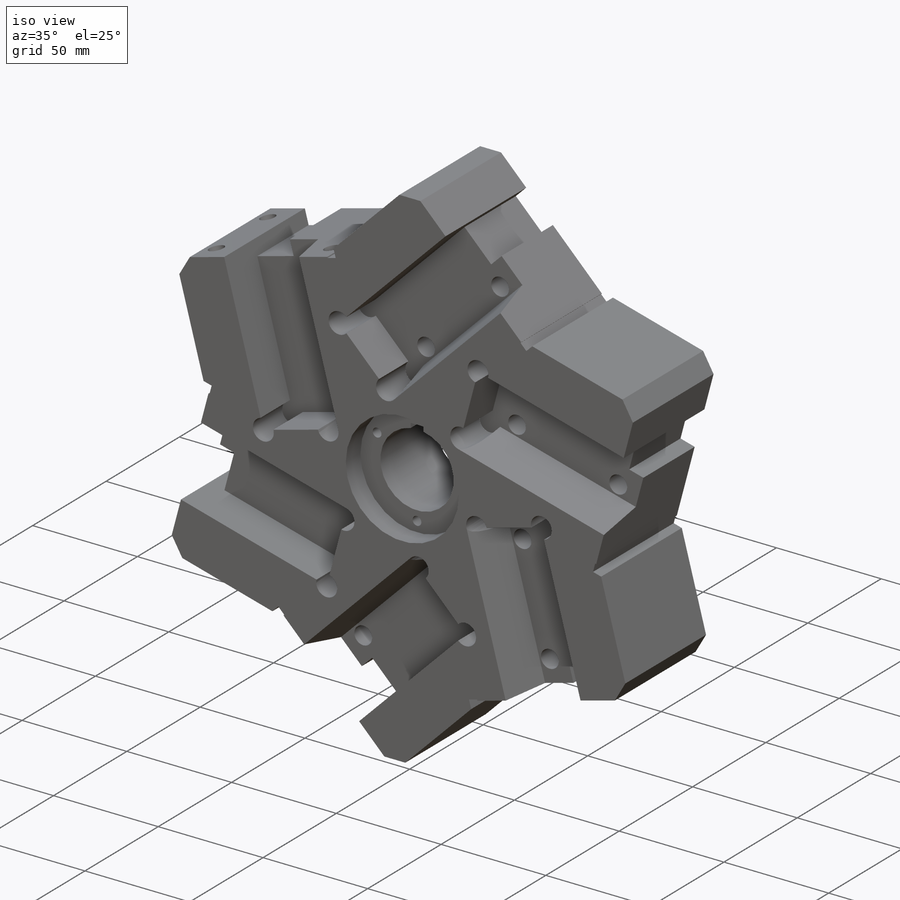
[diagram: iso view]
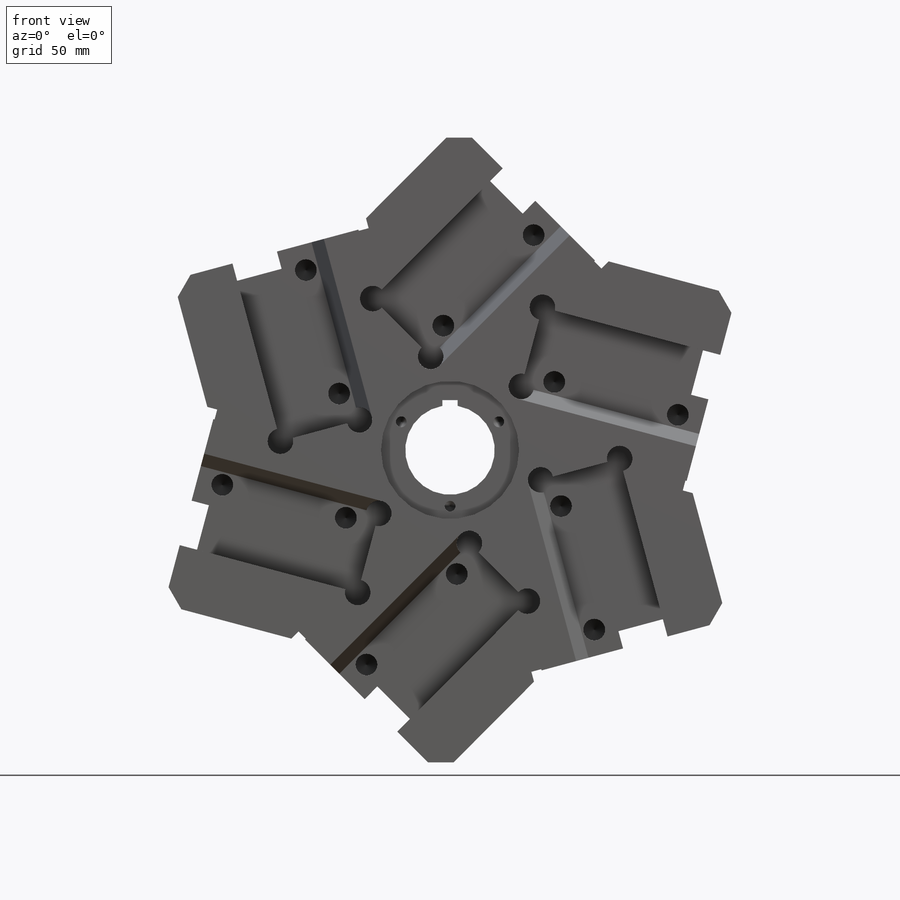
[diagram: front view]
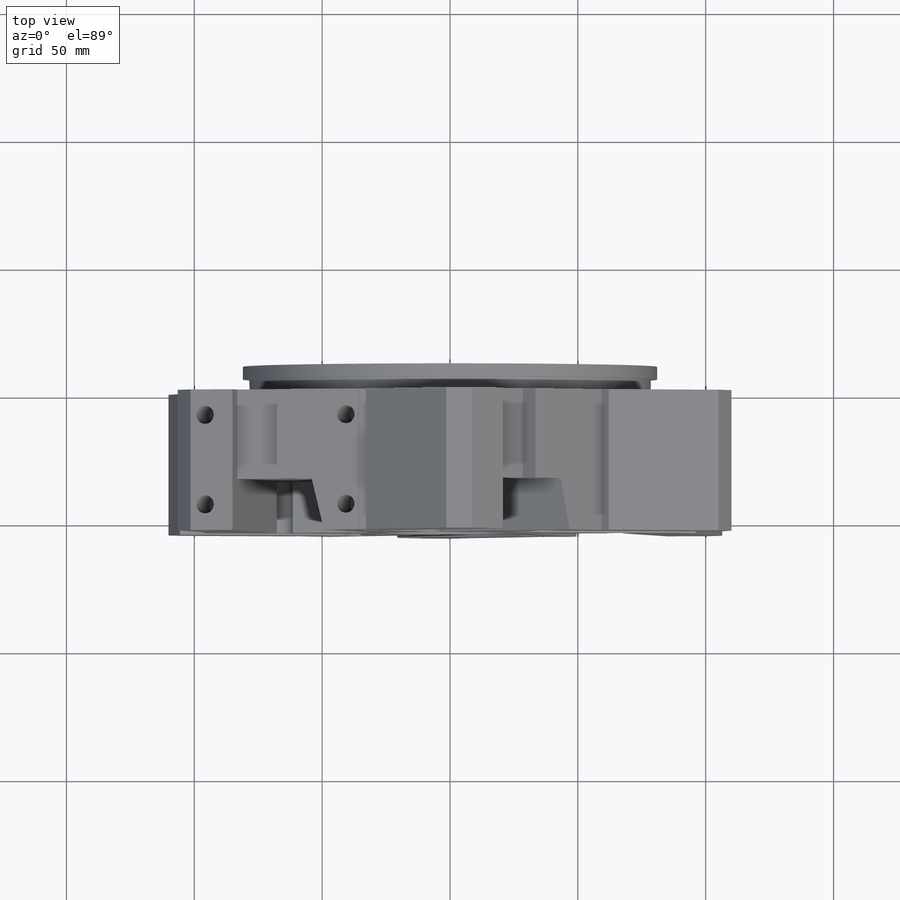
[diagram: top view]
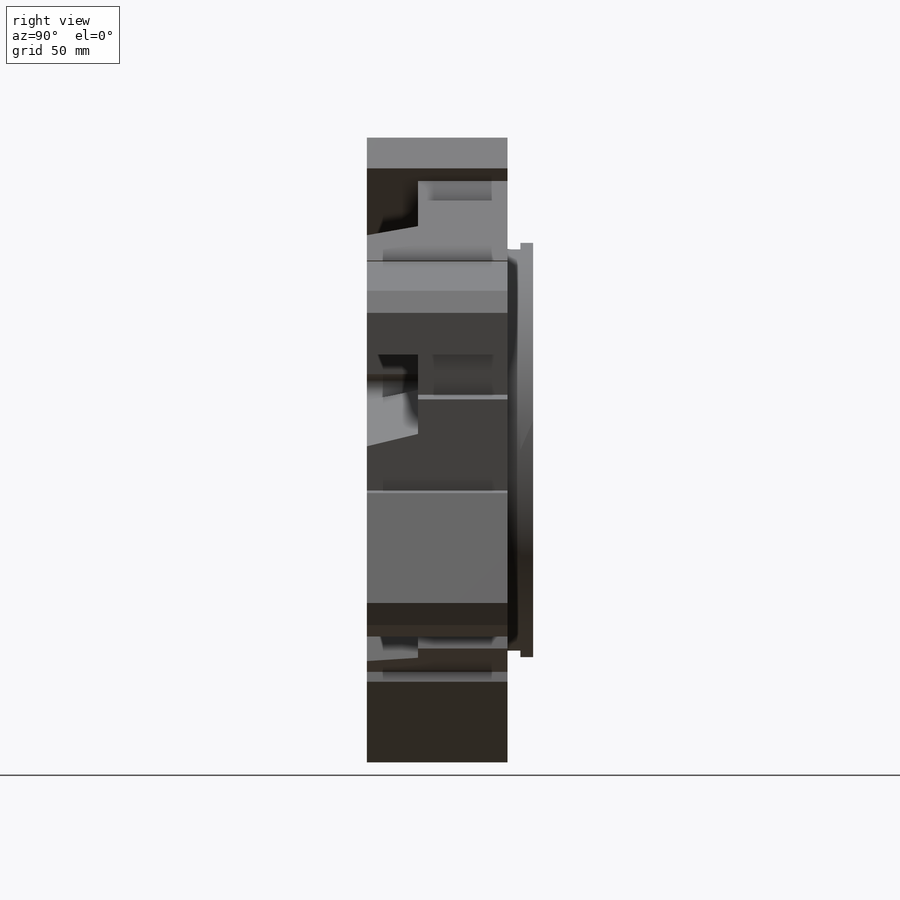
[diagram: right view]
SOLIDWORKS PART (.sldprt)
format: sldprt  version: not decoded by parser v0  size: 898,560 bytes
history: native  units: mm
features: sketch x23, cut_extrude x12, pattern_circular x5, hole x4, thread x4, extrude x3, material x1, pattern_linear x1, plane x1 (+11 scaffold rows collapsed)
feature tree (65):
  scaffold x11  (default folders/planes/origin — collapsed)
  material  "Material <not specified>"
  sketch  "Sketch1"  dims[D2=~216.61471mm D1=250.0mm]
  extrude  "Boss-Extrude1"  Depth=55mm
  sketch  "Sketch3"  dims[c1.D4=~177.014893mm c1.D1=5.0mm c1.D2=~30.923421mm c1.D3=~24.320141mm c2.D3=~76.28753deg c2.D4=~30.923421mm c2.D2=30.0mm c3.D3=35.0mm c3.D4=35.0mm c4.D4=~15.945396deg c5.D4=10.0mm c6.D4=90.0deg c6.D6=~89.689111mm c6.D7=10.0mm c7.D7=60.0deg c8.D7=10.0mm c8.D6=120.0mm c9.D7=~89.689111mm c9.D8=~17.390084mm c9.D1=10.0mm c9.D2=10.0mm c9.D5=~113.521332mm c9.D6=~122.124798mm c9.D3=6.0]
  cut_extrude  "Cut-Extrude1"  [1 undecoded]
  sketch  "Sketch6"  dims[c1.D1=72.0mm c1.D2=43.0mm c1.D3=~90.909839mm c2.D3=~52.968562deg c2.D1=72.0mm c3.D1=90.0deg c3.D5=~65.528247mm c4.D1=72.0mm c4.D2=46.0mm c4.D3=~55.143655mm c5.D3=~67.638957deg c5.D2=42.0mm c6.D3=4.0mm c6.D4=0.5mm c6.D5=68.0mm c6.D6=~67.109142mm c7.D6=~57.920876deg c7.D7=~49.701358mm c8.D7=~35.646978deg c9.D7=27.469mm c10.D7=~125.646978deg c10.D2=27.469mm c11.D2=135.0deg c11.D7=~44.526404mm c11.D9=~47.983203mm c12.D9=~90.119105deg c12.D2=~47.983203mm c13.D2=90.0deg c13.D9=27.469mm c14.D9=~135.070309deg c14.D8=6.0]
  cut_extrude  "Cut-Extrude6"  [1 undecoded]
  sketch  "Sketch7"  dims[c1.D4=10.0mm c1.D5=10.0mm c1.D7=5.0mm c2.D4=5.0mm c2.D5=5.0mm c2.D1=32.0mm c2.D2=17.0mm c2.D3=72.0mm c2.D6=32.0mm c2.D7=~17.361507mm c3.D6=6.0]
  cut_extrude  "Cut-Extrude7"  Depth=20mm
  sketch  "Sketch8"  dims[D1=35.0mm D2=2.0mm D3=6.0mm D4=18.0mm D5=7.0mm D6=~14.186485mm D8=7.0mm D7=6.0]
  cut_extrude  "Cut-Extrude8"  [1 undecoded]
  sketch  "Sketch9"  dims[D1=54.0mm]
  cut_extrude  "Cut-Extrude9"  Depth=10mm
  hole  "M5 Tapped Hole1"  Diameter=4.2mm Depth=25mm
  sketch  "Sketch12"  dims[D1=4.5mm]
  sketch  "Sketch13"  dims[hole-wizard template sketch: 47 standard entries collapsed; hole parameters kept: c15.Tap Drill Depth=25.0mm c15.D3=~14.816244mm c15.Drill Angle=118.0deg]
  thread  "Hole Thread1"  Diameter=20mm  [1 undecoded]
  pattern_circular  "CirPattern1"  Count=3 Angle=120deg
  sketch  "Sketch14"  dims[c1.D1=11.0mm c1.D2=40.0mm c2.D1=37.0mm c2.D2=~23.63069mm c3.D2=~57.81762deg]
  cut_extrude  "Cut-Extrude10"  [1 undecoded]
  pattern_circular  "CirPattern2"  Count=6 Angle=60deg
  hole  "M8x1.0 Tapped Hole1"  Diameter=7mm Depth=20mm
  sketch  "Sketch17"  dims[D1=13.0mm D2=10.0mm]
  sketch  "Sketch16"  dims[hole-wizard template sketch: 46 standard entries collapsed; hole parameters kept: c15.Tap Drill Dia.=7.0mm c15.Tap Drill Depth=20.0mm c15.D3=~14.816244mm c15.Drill Angle=118.0deg]
  thread  "Hole Thread2"  Diameter=20mm  [1 undecoded]
  pattern_linear  "LPattern1"  Count1=2 Count2=2 Spacing1=57mm Spacing2=35mm
  sketch  "Sketch18"  dims[D1=157.0mm D2=2.5mm]
  extrude  "Boss-Extrude2"  Depth=5mm
  sketch  "Sketch19"  dims[D1=5.0mm]
  extrude  "Boss-Extrude3"  Depth=5mm
  sketch  "Sketch21"  dims[D1=70.0mm]
  cut_extrude  "Cut-Extrude11"  Depth=17mm
  sketch  "Sketch22"  dims[D1=112.0mm]
  cut_extrude  "Cut-Extrude12"  Depth=1.5mm
  sketch  "Sketch23"  dims[D1=6.0mm]
  cut_extrude  "Cut-Extrude13"  [1 undecoded]
  plane  "Plane1"  Offset=14mm
  sketch  "Sketch25"  dims[c1.D1=12.0mm c1.D2=~2.217472mm c2.D2=~66.883838deg c2.D3=~6.982306mm]
  cut_extrude  "Cut-Extrude14"  [1 undecoded]
  pattern_circular  "CirPattern4"  Count=6 Angle=60deg
  pattern_circular  "CirPattern5"  Count=6 Angle=60deg
  hole  "CBORE for M6 Hex Head Bolt1"  Diameter=6.6mm Depth=20mm
  sketch  "Sketch27"  dims[c1.D1=~89.424186mm c2.D1=60.0deg c2.D2=9.25mm c2.D3=9.25mm]
  sketch  "Sketch26"  dims[hole-wizard template sketch: 28 standard entries collapsed; hole parameters kept: c8.Hole Dia.=6.6mm c8.Hole Depth=20.0mm c8.C'Bore Dia.=14.547mm c8.C'Bore Depth=4.0mm c8.D5=~14.816244mm c8.Drill Angle=118.0deg]
  sketch  "Sketch28"  dims[c1.D1=~10.825229mm c1.D2=5.0mm c2.D1=2.0mm c2.D3=79.0mm c3.D3=60.0deg]
  cut_extrude  "Cut-Extrude15"  Depth=10mm
  sketch  "Sketch29"  dims[c1.D1=8.0mm c1.D2=8.0mm c1.D5=8.0mm c2.D2=2.0mm c2.D3=62.0mm c3.D3=60.0deg c3.D5=62.0mm c3.D6=62.0mm c3.D4=6.0]
  cut_extrude  "Cut-Extrude16"  Depth=12mm
  hole  "M10 Tapped Hole1"  Diameter=8.5mm Depth=24.5mm
  sketch  "Sketch31"  dims[D1=10.0mm D2=27.0mm D3=50.0mm]
  sketch  "Sketch32"  dims[hole-wizard template sketch: 46 standard entries collapsed; hole parameters kept: c15.Tap Drill Dia.=8.5mm c15.Tap Drill Depth=24.5mm c15.D3=~14.816244mm c15.Drill Angle=118.0deg]
  thread  "Hole Thread3"  Diameter=20mm  [1 undecoded]
  thread  "Hole Thread4"  Diameter=20mm  [1 undecoded]
  pattern_circular  "CirPattern6"  Count=6 Angle=60deg
decode coverage: 46 of 52 modeling features carry decoded parameters
note: ~ marks probable driven/reference dimensions
note: 10 parameter values undecoded
summary: no parameter record found for 6 features; Diameter pulled from absorbed wizard sketch
note: suppression state not decoded; provenance and decode notes live in map.json
